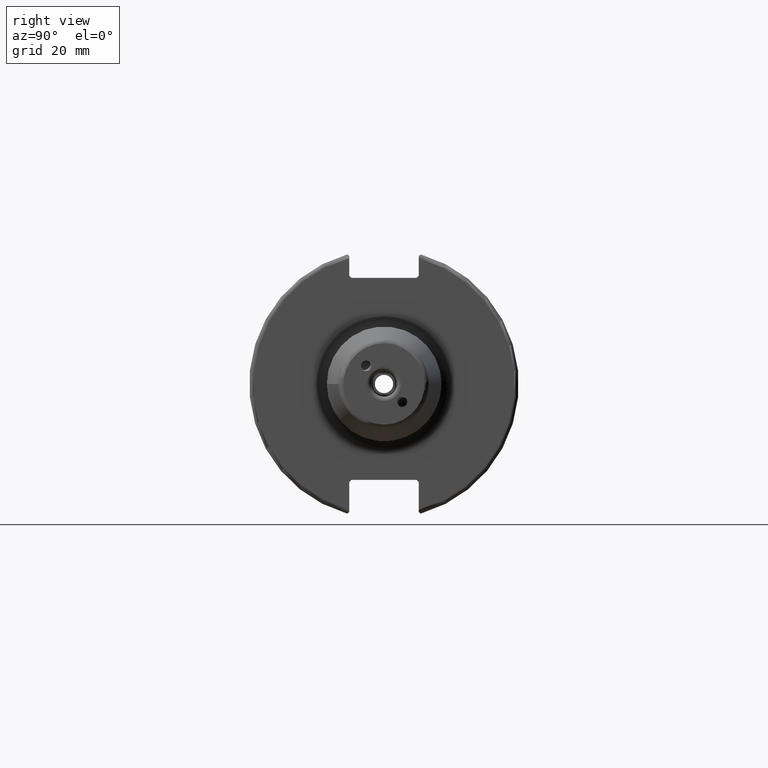
[diagram: clean part render]
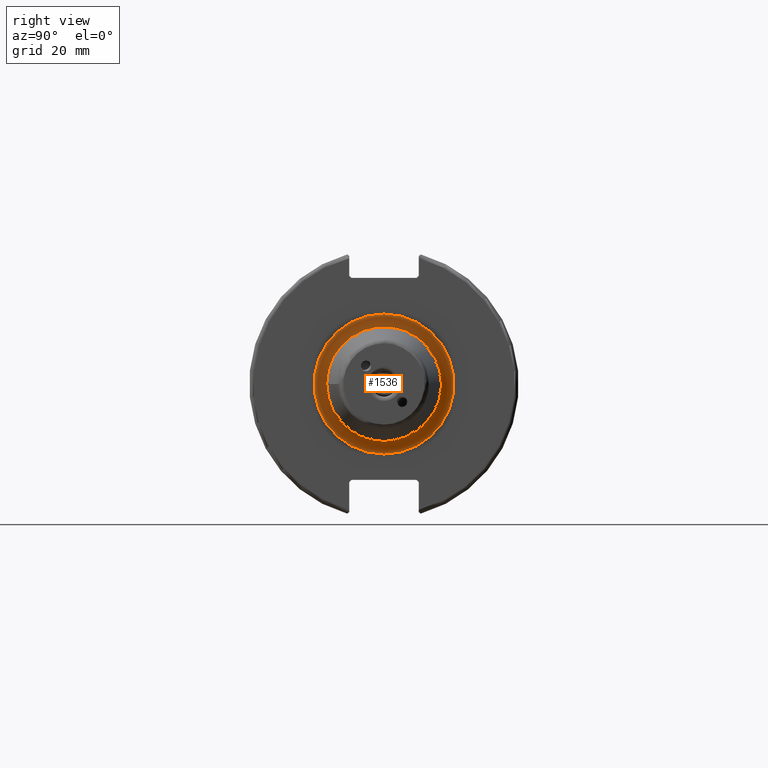
[diagram: same view with one face highlighted and labeled with its STEP entity id]
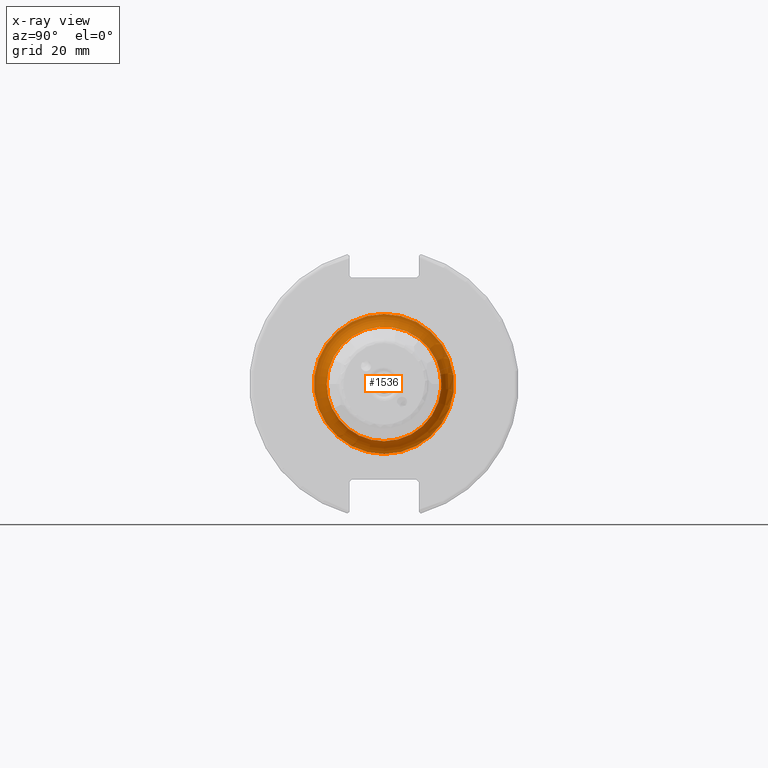
[diagram: x-ray of the same camera — body ghosted, the highlighted face saturated]
A machine part, right view. The second image highlights one B-rep face of the part: STEP entity #1536.
The next image is the same camera in x-ray: the body ghosted, the highlighted face saturated — about 0% of this face is hidden behind the body in this view.
In plain terms, the highlighted toroidal blend (fillet) surface has major radius 16.5 mm and minor (blend) radius 3 mm.
Its self-contained STEP definition (entity closure, byte-faithful):
#118=TOROIDAL_SURFACE('',#1663,16.5,3.);
#184=FACE_OUTER_BOUND('',#277,.T.);
#277=EDGE_LOOP('',(#1075,#1076,#1077,#1078,#1079));
#577=CIRCLE('',#1664,13.5);
#578=CIRCLE('',#1665,3.);
#579=CIRCLE('',#1666,16.5);
#580=CIRCLE('',#1667,13.5);
#655=VERTEX_POINT('',#2341);
#656=VERTEX_POINT('',#2342);
#657=VERTEX_POINT('',#2344);
#819=EDGE_CURVE('',#655,#656,#577,.T.);
#820=EDGE_CURVE('',#656,#657,#578,.T.);
#821=EDGE_CURVE('',#657,#657,#579,.T.);
#822=EDGE_CURVE('',#656,#655,#580,.T.);
#1075=ORIENTED_EDGE('',*,*,#819,.T.);
#1076=ORIENTED_EDGE('',*,*,#820,.T.);
#1077=ORIENTED_EDGE('',*,*,#821,.T.);
#1078=ORIENTED_EDGE('',*,*,#820,.F.);
#1079=ORIENTED_EDGE('',*,*,#822,.T.);
#1536=ADVANCED_FACE('',(#184),#118,.F.);
#1663=AXIS2_PLACEMENT_3D('',#2340,#1880,#1881);
#1664=AXIS2_PLACEMENT_3D('',#2343,#1882,#1883);
#1665=AXIS2_PLACEMENT_3D('',#2345,#1884,#1885);
#1666=AXIS2_PLACEMENT_3D('',#2346,#1886,#1887);
#1667=AXIS2_PLACEMENT_3D('',#2347,#1888,#1889);
#1880=DIRECTION('center_axis',(-1.,0.,0.));
#1881=DIRECTION('ref_axis',(0.,0.,1.));
#1882=DIRECTION('center_axis',(-1.,0.,0.));
#1883=DIRECTION('ref_axis',(0.,-1.,-1.22464679914735E-16));
#1884=DIRECTION('center_axis',(0.,-1.,1.22464679914735E-16));
#1885=DIRECTION('ref_axis',(0.,-1.22464679914735E-16,-1.));
#1886=DIRECTION('center_axis',(1.,0.,0.));
#1887=DIRECTION('ref_axis',(0.,-1.,-1.22464679914735E-16));
#1888=DIRECTION('center_axis',(-1.,0.,0.));
#1889=DIRECTION('ref_axis',(0.,-1.,-1.22464679914735E-16));
#2340=CARTESIAN_POINT('Origin',(22.05,0.,0.));
#2341=CARTESIAN_POINT('',(22.05,-13.5,-1.65327317884893E-15));
#2342=CARTESIAN_POINT('',(22.05,-1.65327317884893E-15,-13.5));
#2343=CARTESIAN_POINT('Origin',(22.05,0.,0.));
#2344=CARTESIAN_POINT('',(19.05,-2.02066721859313E-15,-16.5));
#2345=CARTESIAN_POINT('Origin',(22.05,-2.02066721859313E-15,-16.5));
#2346=CARTESIAN_POINT('Origin',(19.05,0.,0.));
#2347=CARTESIAN_POINT('Origin',(22.05,0.,0.));